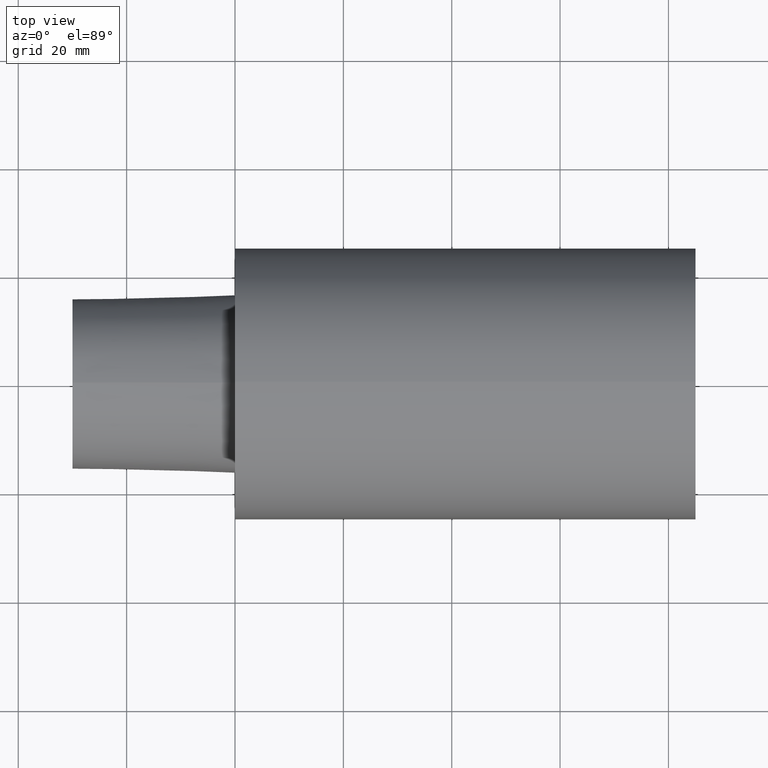
[diagram: clean part render]
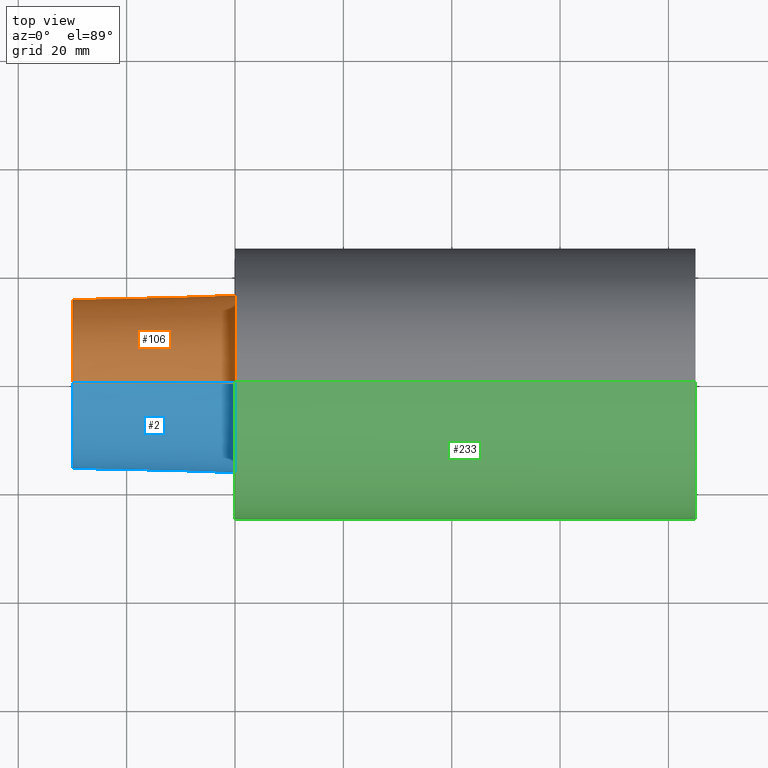
[diagram: same view with three faces highlighted in distinct colors, each labeled with its STEP entity id]
A machine part, top view with three faces highlighted in distinct colors.
Their STEP definitions:

[orange] entity #106 — the highlighted conical surface has half-angle 1.432 deg.
#9 = VERTEX_POINT ( 'NONE', #149 ) ;
#12 = CARTESIAN_POINT ( 'NONE',  ( -29.99999996940000102, 0.000000000000000000, -15.70494056296217700 ) ) ;
#15 = CIRCLE ( 'NONE', #253, 16.45500658257258664 ) ;
#18 = DIRECTION ( 'NONE',  ( 0.000000000000000000, 0.000000000000000000, 1.000000000000000000 ) ) ;
#29 = VERTEX_POINT ( 'NONE', #12 ) ;
#40 = CARTESIAN_POINT ( 'NONE',  ( 0.000000000000000000, 2.015157114129614578E-15, 16.45500658257258664 ) ) ;
#48 = LINE ( 'NONE', #129, #112 ) ;
#56 = EDGE_CURVE ( 'NONE', #29, #185, #48, .T. ) ;
#57 = DIRECTION ( 'NONE',  ( -1.000000000000000000, 0.000000000000000000, 0.000000000000000000 ) ) ;
#65 = CIRCLE ( 'NONE', #164, 15.70494056296217700 ) ;
#78 = CARTESIAN_POINT ( 'NONE',  ( 0.000000000000000000, 0.000000000000000000, 0.000000000000000000 ) ) ;
#80 = EDGE_CURVE ( 'NONE', #89, #185, #15, .T. ) ;
#88 = EDGE_LOOP ( 'NONE', ( #245, #227, #153, #219 ) ) ;
#89 = VERTEX_POINT ( 'NONE', #40 ) ;
#96 = DIRECTION ( 'NONE',  ( 0.9996875914402667540, 3.060929943787468651E-18, 0.02499438977767799372 ) ) ;
#98 = DIRECTION ( 'NONE',  ( -1.000000000000000000, 0.000000000000000000, 0.000000000000000000 ) ) ;
#100 = CARTESIAN_POINT ( 'NONE',  ( 0.000000000000000000, 0.000000000000000000, -16.45500658257258664 ) ) ;
#106 = ADVANCED_FACE ( 'NONE', ( #173 ), #250, .T. ) ;
#112 = VECTOR ( 'NONE', #205, 999.9999999999998863 ) ;
#114 = AXIS2_PLACEMENT_3D ( 'NONE', #231, #118, #119 ) ;
#117 = EDGE_CURVE ( 'NONE', #9, #89, #195, .T. ) ;
#118 = DIRECTION ( 'NONE',  ( 1.000000000000000000, 0.000000000000000000, 0.000000000000000000 ) ) ;
#119 = DIRECTION ( 'NONE',  ( 0.000000000000000000, 0.000000000000000000, -1.000000000000000000 ) ) ;
#120 = CARTESIAN_POINT ( 'NONE',  ( 0.000000000000000000, 2.015157114129614578E-15, 16.45500658257258664 ) ) ;
#129 = CARTESIAN_POINT ( 'NONE',  ( 0.000000000000000000, 0.000000000000000000, -16.45500658257258664 ) ) ;
#146 = VECTOR ( 'NONE', #96, 999.9999999999998863 ) ;
#149 = CARTESIAN_POINT ( 'NONE',  ( -29.99999996940000102, 1.969228816626358703E-15, 15.70494056296217700 ) ) ;
#153 = ORIENTED_EDGE ( 'NONE', *, *, #80, .T. ) ;
#164 = AXIS2_PLACEMENT_3D ( 'NONE', #249, #98, #18 ) ;
#171 = DIRECTION ( 'NONE',  ( 0.000000000000000000, 0.000000000000000000, 1.000000000000000000 ) ) ;
#173 = FACE_OUTER_BOUND ( 'NONE', #88, .T. ) ;
#176 = EDGE_CURVE ( 'NONE', #9, #29, #65, .T. ) ;
#185 = VERTEX_POINT ( 'NONE', #100 ) ;
#195 = LINE ( 'NONE', #120, #146 ) ;
#205 = DIRECTION ( 'NONE',  ( 0.9996875914402667540, 0.000000000000000000, -0.02499438977767799372 ) ) ;
#219 = ORIENTED_EDGE ( 'NONE', *, *, #56, .F. ) ;
#227 = ORIENTED_EDGE ( 'NONE', *, *, #117, .T. ) ;
#231 = CARTESIAN_POINT ( 'NONE',  ( 0.000000000000000000, 0.000000000000000000, 0.000000000000000000 ) ) ;
#245 = ORIENTED_EDGE ( 'NONE', *, *, #176, .F. ) ;
#249 = CARTESIAN_POINT ( 'NONE',  ( -29.99999996940000102, 0.000000000000000000, 0.000000000000000000 ) ) ;
#250 = CONICAL_SURFACE ( 'NONE', #114, 16.45500658257258664, 0.02499699292341668252 ) ;
#253 = AXIS2_PLACEMENT_3D ( 'NONE', #78, #57, #171 ) ;

[blue] entity #2 — the highlighted conical surface has half-angle 1.432 deg.
#2 = ADVANCED_FACE ( 'NONE', ( #46 ), #39, .T. ) ;
#7 = AXIS2_PLACEMENT_3D ( 'NONE', #191, #8, #163 ) ;
#8 = DIRECTION ( 'NONE',  ( 1.000000000000000000, 0.000000000000000000, 0.000000000000000000 ) ) ;
#9 = VERTEX_POINT ( 'NONE', #149 ) ;
#12 = CARTESIAN_POINT ( 'NONE',  ( -29.99999996940000102, 0.000000000000000000, -15.70494056296217700 ) ) ;
#29 = VERTEX_POINT ( 'NONE', #12 ) ;
#39 = CONICAL_SURFACE ( 'NONE', #7, 16.45500658257258664, 0.02499699292341668252 ) ;
#40 = CARTESIAN_POINT ( 'NONE',  ( 0.000000000000000000, 2.015157114129614578E-15, 16.45500658257258664 ) ) ;
#44 = EDGE_CURVE ( 'NONE', #29, #9, #156, .T. ) ;
#46 = FACE_OUTER_BOUND ( 'NONE', #208, .T. ) ;
#48 = LINE ( 'NONE', #129, #112 ) ;
#51 = ORIENTED_EDGE ( 'NONE', *, *, #52, .T. ) ;
#52 = EDGE_CURVE ( 'NONE', #185, #89, #82, .T. ) ;
#56 = EDGE_CURVE ( 'NONE', #29, #185, #48, .T. ) ;
#68 = DIRECTION ( 'NONE',  ( 0.000000000000000000, 0.000000000000000000, 1.000000000000000000 ) ) ;
#72 = ORIENTED_EDGE ( 'NONE', *, *, #117, .F. ) ;
#82 = CIRCLE ( 'NONE', #189, 16.45500658257258664 ) ;
#89 = VERTEX_POINT ( 'NONE', #40 ) ;
#96 = DIRECTION ( 'NONE',  ( 0.9996875914402667540, 3.060929943787468651E-18, 0.02499438977767799372 ) ) ;
#100 = CARTESIAN_POINT ( 'NONE',  ( 0.000000000000000000, 0.000000000000000000, -16.45500658257258664 ) ) ;
#112 = VECTOR ( 'NONE', #205, 999.9999999999998863 ) ;
#117 = EDGE_CURVE ( 'NONE', #9, #89, #195, .T. ) ;
#120 = CARTESIAN_POINT ( 'NONE',  ( 0.000000000000000000, 2.015157114129614578E-15, 16.45500658257258664 ) ) ;
#128 = DIRECTION ( 'NONE',  ( 0.000000000000000000, 0.000000000000000000, 1.000000000000000000 ) ) ;
#129 = CARTESIAN_POINT ( 'NONE',  ( 0.000000000000000000, 0.000000000000000000, -16.45500658257258664 ) ) ;
#146 = VECTOR ( 'NONE', #96, 999.9999999999998863 ) ;
#149 = CARTESIAN_POINT ( 'NONE',  ( -29.99999996940000102, 1.969228816626358703E-15, 15.70494056296217700 ) ) ;
#156 = CIRCLE ( 'NONE', #174, 15.70494056296217700 ) ;
#163 = DIRECTION ( 'NONE',  ( 0.000000000000000000, 0.000000000000000000, -1.000000000000000000 ) ) ;
#174 = AXIS2_PLACEMENT_3D ( 'NONE', #248, #204, #128 ) ;
#183 = CARTESIAN_POINT ( 'NONE',  ( 0.000000000000000000, 0.000000000000000000, 0.000000000000000000 ) ) ;
#185 = VERTEX_POINT ( 'NONE', #100 ) ;
#188 = ORIENTED_EDGE ( 'NONE', *, *, #44, .F. ) ;
#189 = AXIS2_PLACEMENT_3D ( 'NONE', #183, #243, #68 ) ;
#191 = CARTESIAN_POINT ( 'NONE',  ( 0.000000000000000000, 0.000000000000000000, 0.000000000000000000 ) ) ;
#195 = LINE ( 'NONE', #120, #146 ) ;
#204 = DIRECTION ( 'NONE',  ( -1.000000000000000000, 0.000000000000000000, 0.000000000000000000 ) ) ;
#205 = DIRECTION ( 'NONE',  ( 0.9996875914402667540, 0.000000000000000000, -0.02499438977767799372 ) ) ;
#208 = EDGE_LOOP ( 'NONE', ( #72, #188, #241, #51 ) ) ;
#241 = ORIENTED_EDGE ( 'NONE', *, *, #56, .T. ) ;
#243 = DIRECTION ( 'NONE',  ( -1.000000000000000000, 0.000000000000000000, 0.000000000000000000 ) ) ;
#248 = CARTESIAN_POINT ( 'NONE',  ( -29.99999996940000102, 0.000000000000000000, 0.000000000000000000 ) ) ;

[green] entity #233 — the highlighted cylindrical surface (partial cylindrical patch) has radius 25 mm, axis along (-1, 0, 0).
#11 = VERTEX_POINT ( 'NONE', #223 ) ;
#28 = VECTOR ( 'NONE', #141, 1000.000000000000000 ) ;
#32 = VERTEX_POINT ( 'NONE', #221 ) ;
#38 = CARTESIAN_POINT ( 'NONE',  ( 0.000000000000000000, 0.000000000000000000, 0.000000000000000000 ) ) ;
#47 = ORIENTED_EDGE ( 'NONE', *, *, #213, .F. ) ;
#53 = CARTESIAN_POINT ( 'NONE',  ( -29.99999996940000102, 3.061616994745535943E-15, -24.99999997449999967 ) ) ;
#54 = CARTESIAN_POINT ( 'NONE',  ( 84.99999991329998750, 0.000000000000000000, 0.000000000000000000 ) ) ;
#71 = VERTEX_POINT ( 'NONE', #166 ) ;
#73 = CARTESIAN_POINT ( 'NONE',  ( -29.99999996940000102, 0.000000000000000000, 0.000000000000000000 ) ) ;
#75 = DIRECTION ( 'NONE',  ( 0.000000000000000000, 0.000000000000000000, 1.000000000000000000 ) ) ;
#76 = CIRCLE ( 'NONE', #140, 24.99999997449999967 ) ;
#77 = EDGE_CURVE ( 'NONE', #202, #71, #142, .T. ) ;
#85 = DIRECTION ( 'NONE',  ( 0.000000000000000000, 0.000000000000000000, 1.000000000000000000 ) ) ;
#87 = AXIS2_PLACEMENT_3D ( 'NONE', #38, #211, #75 ) ;
#94 = FACE_OUTER_BOUND ( 'NONE', #182, .T. ) ;
#110 = ORIENTED_EDGE ( 'NONE', *, *, #77, .F. ) ;
#127 = ORIENTED_EDGE ( 'NONE', *, *, #234, .T. ) ;
#134 = DIRECTION ( 'NONE',  ( -1.000000000000000000, 0.000000000000000000, 0.000000000000000000 ) ) ;
#140 = AXIS2_PLACEMENT_3D ( 'NONE', #54, #216, #85 ) ;
#141 = DIRECTION ( 'NONE',  ( -1.000000000000000000, 0.000000000000000000, 0.000000000000000000 ) ) ;
#142 = CIRCLE ( 'NONE', #87, 24.99999997449999967 ) ;
#143 = LINE ( 'NONE', #177, #28 ) ;
#154 = LINE ( 'NONE', #53, #230 ) ;
#155 = DIRECTION ( 'NONE',  ( -1.000000000000000000, 0.000000000000000000, 0.000000000000000000 ) ) ;
#166 = CARTESIAN_POINT ( 'NONE',  ( 0.000000000000000000, 0.000000000000000000, 24.99999997449999967 ) ) ;
#167 = ORIENTED_EDGE ( 'NONE', *, *, #240, .T. ) ;
#170 = CYLINDRICAL_SURFACE ( 'NONE', #235, 24.99999997449999967 ) ;
#177 = CARTESIAN_POINT ( 'NONE',  ( -29.99999996940000102, 0.000000000000000000, 24.99999997449999967 ) ) ;
#182 = EDGE_LOOP ( 'NONE', ( #47, #127, #167, #110 ) ) ;
#202 = VERTEX_POINT ( 'NONE', #254 ) ;
#211 = DIRECTION ( 'NONE',  ( -1.000000000000000000, 0.000000000000000000, 0.000000000000000000 ) ) ;
#213 = EDGE_CURVE ( 'NONE', #11, #202, #154, .T. ) ;
#216 = DIRECTION ( 'NONE',  ( -1.000000000000000000, 0.000000000000000000, 0.000000000000000000 ) ) ;
#221 = CARTESIAN_POINT ( 'NONE',  ( 84.99999991329998750, 0.000000000000000000, 24.99999997449999967 ) ) ;
#223 = CARTESIAN_POINT ( 'NONE',  ( 84.99999991329998750, 3.061616994745535943E-15, -24.99999997449999967 ) ) ;
#229 = DIRECTION ( 'NONE',  ( 0.000000000000000000, 0.000000000000000000, 1.000000000000000000 ) ) ;
#230 = VECTOR ( 'NONE', #134, 1000.000000000000000 ) ;
#233 = ADVANCED_FACE ( 'NONE', ( #94 ), #170, .T. ) ;
#234 = EDGE_CURVE ( 'NONE', #11, #32, #76, .T. ) ;
#235 = AXIS2_PLACEMENT_3D ( 'NONE', #73, #155, #229 ) ;
#240 = EDGE_CURVE ( 'NONE', #32, #71, #143, .T. ) ;
#254 = CARTESIAN_POINT ( 'NONE',  ( 0.000000000000000000, 3.061616994745535943E-15, -24.99999997449999967 ) ) ;